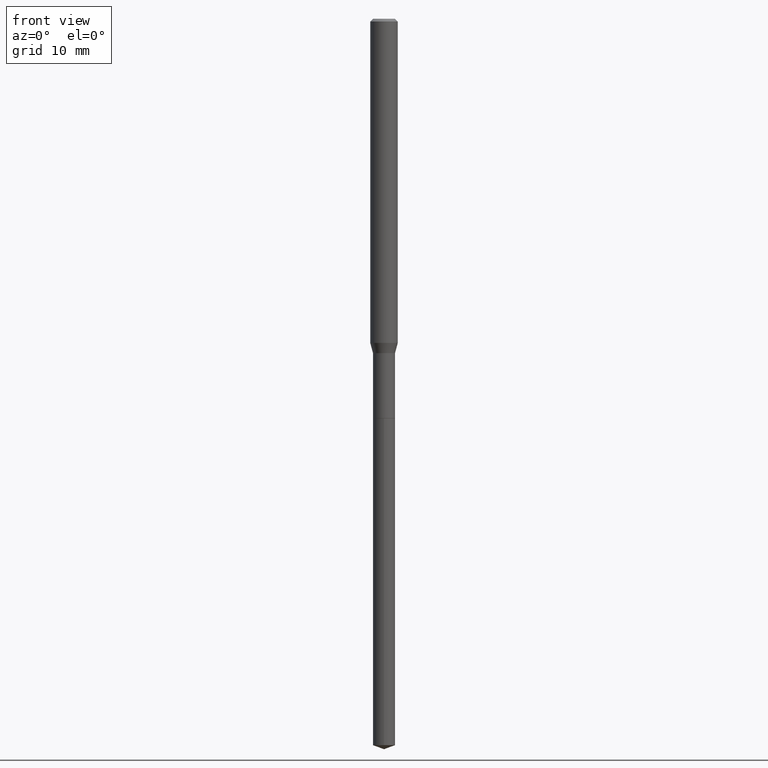
[diagram: clean part render]
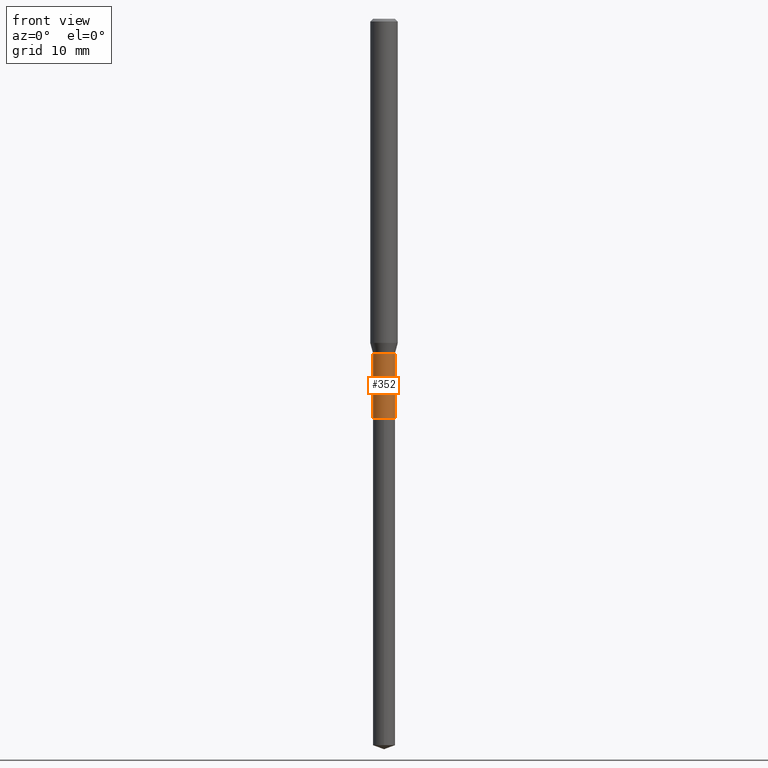
[diagram: same view with one face highlighted and labeled with its STEP entity id]
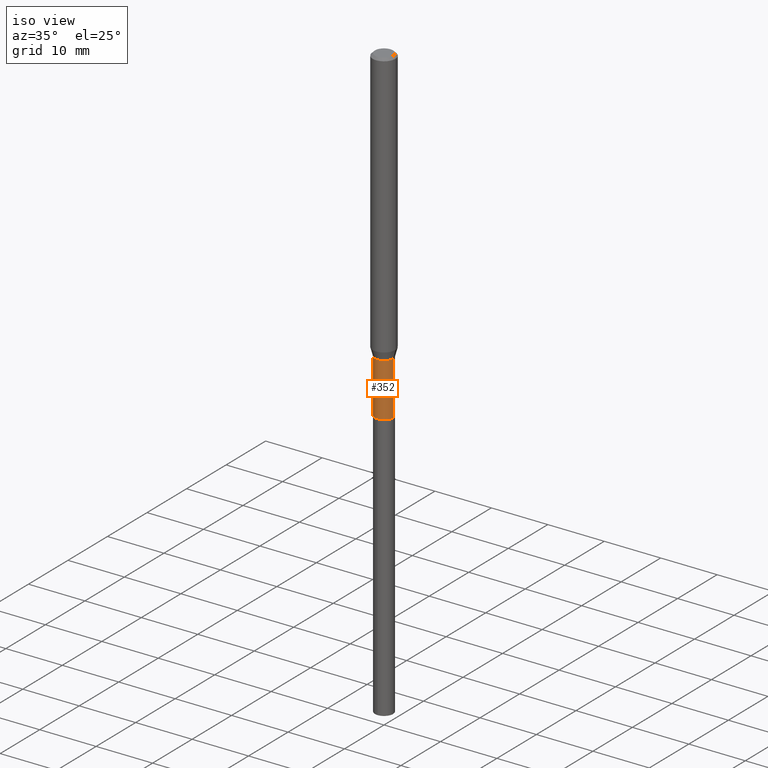
[diagram: same view with one face highlighted and labeled with its STEP entity id]
A machine part, front view. The second image highlights one B-rep face of the part: STEP entity #352.
A second angle (iso view) of the same face is appended — the face is thin or edge-on in the first view.
In plain terms, the highlighted cylindrical surface (edge-blend (fillet) strip) has radius 1.6002 mm, axis along (-0, 0, 1).
Its self-contained STEP definition (entity closure, byte-faithful):
#6 = CIRCLE ( 'NONE', #487, 0.06299999999999998657 ) ;
#11 = CARTESIAN_POINT ( 'NONE',  ( -0.06299999999999994493, -6.872423277422732217E-15, -1.910199999999999676 ) ) ;
#19 = VERTEX_POINT ( 'NONE', #471 ) ;
#30 = CARTESIAN_POINT ( 'NONE',  ( 5.582760737640047761E-29, -7.970702748445015750E-15, -2.282899999999999707 ) ) ;
#35 = LINE ( 'NONE', #328, #411 ) ;
#39 = FACE_OUTER_BOUND ( 'NONE', #210, .T. ) ;
#41 = ORIENTED_EDGE ( 'NONE', *, *, #132, .T. ) ;
#58 = AXIS2_PLACEMENT_3D ( 'NONE', #327, #298, #479 ) ;
#73 = AXIS2_PLACEMENT_3D ( 'NONE', #454, #125, #269 ) ;
#102 = LINE ( 'NONE', #149, #330 ) ;
#125 = DIRECTION ( 'NONE',  ( -2.445468806185136597E-29, 3.491481338843145583E-15, 1.000000000000000000 ) ) ;
#132 = EDGE_CURVE ( 'NONE', #270, #399, #102, .T. ) ;
#149 = CARTESIAN_POINT ( 'NONE',  ( 0.06299999999999997269, -4.399266486942345286E-16, 3.071991368751438022E-30 ) ) ;
#154 = CYLINDRICAL_SURFACE ( 'NONE', #73, 0.06299999999999997269 ) ;
#165 = ORIENTED_EDGE ( 'NONE', *, *, #196, .F. ) ;
#180 = EDGE_CURVE ( 'NONE', #19, #270, #6, .T. ) ;
#196 = EDGE_CURVE ( 'NONE', #19, #425, #35, .T. ) ;
#200 = EDGE_CURVE ( 'NONE', #425, #399, #472, .T. ) ;
#210 = EDGE_LOOP ( 'NONE', ( #165, #344, #41, #313 ) ) ;
#218 = DIRECTION ( 'NONE',  ( -2.445468806185136597E-29, 3.491481338843145583E-15, 1.000000000000000000 ) ) ;
#251 = DIRECTION ( 'NONE',  ( -2.445468806185136877E-29, 3.491481338843145188E-15, 1.000000000000000000 ) ) ;
#255 = DIRECTION ( 'NONE',  ( 1.000000000000000000, -6.982962677686272233E-15, 0.000000000000000000 ) ) ;
#258 = DIRECTION ( 'NONE',  ( -2.445468806185136877E-29, 3.491481338843145188E-15, 1.000000000000000000 ) ) ;
#269 = DIRECTION ( 'NONE',  ( 1.000000000000000000, -6.982962677686265133E-15, 4.876176775795935232E-29 ) ) ;
#270 = VERTEX_POINT ( 'NONE', #377 ) ;
#298 = DIRECTION ( 'NONE',  ( -2.445468806185136597E-29, 3.491481338843145583E-15, 1.000000000000000000 ) ) ;
#313 = ORIENTED_EDGE ( 'NONE', *, *, #200, .F. ) ;
#327 = CARTESIAN_POINT ( 'NONE',  ( 4.671334513574847415E-29, -6.669427653458175714E-15, -1.910199999999999676 ) ) ;
#328 = CARTESIAN_POINT ( 'NONE',  ( -0.06299999999999997269, 4.476419235288629230E-16, -3.098929106860588902E-30 ) ) ;
#330 = VECTOR ( 'NONE', #251, 39.37007874015748143 ) ;
#344 = ORIENTED_EDGE ( 'NONE', *, *, #180, .T. ) ;
#352 = ADVANCED_FACE ( 'NONE', ( #39 ), #154, .T. ) ;
#377 = CARTESIAN_POINT ( 'NONE',  ( 0.06299999999999998657, -8.410629397139252004E-15, -2.282899999999999707 ) ) ;
#390 = CARTESIAN_POINT ( 'NONE',  ( 0.06299999999999994493, -7.109354302152408812E-15, -1.910199999999999676 ) ) ;
#399 = VERTEX_POINT ( 'NONE', #390 ) ;
#411 = VECTOR ( 'NONE', #258, 39.37007874015748143 ) ;
#425 = VERTEX_POINT ( 'NONE', #11 ) ;
#454 = CARTESIAN_POINT ( 'NONE',  ( 0.000000000000000000, 0.000000000000000000, 0.000000000000000000 ) ) ;
#471 = CARTESIAN_POINT ( 'NONE',  ( -0.06299999999999998657, -6.872423277422732217E-15, -2.282899999999999707 ) ) ;
#472 = CIRCLE ( 'NONE', #58, 0.06299999999999994493 ) ;
#479 = DIRECTION ( 'NONE',  ( 1.000000000000000000, -6.982962677686261977E-15, 0.000000000000000000 ) ) ;
#487 = AXIS2_PLACEMENT_3D ( 'NONE', #30, #218, #255 ) ;